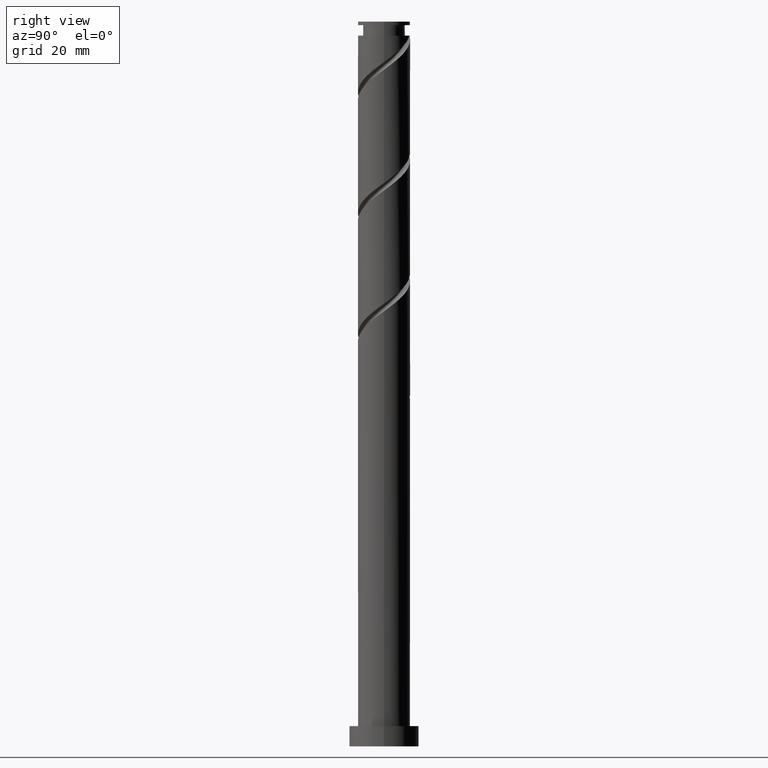
[diagram: clean part render]
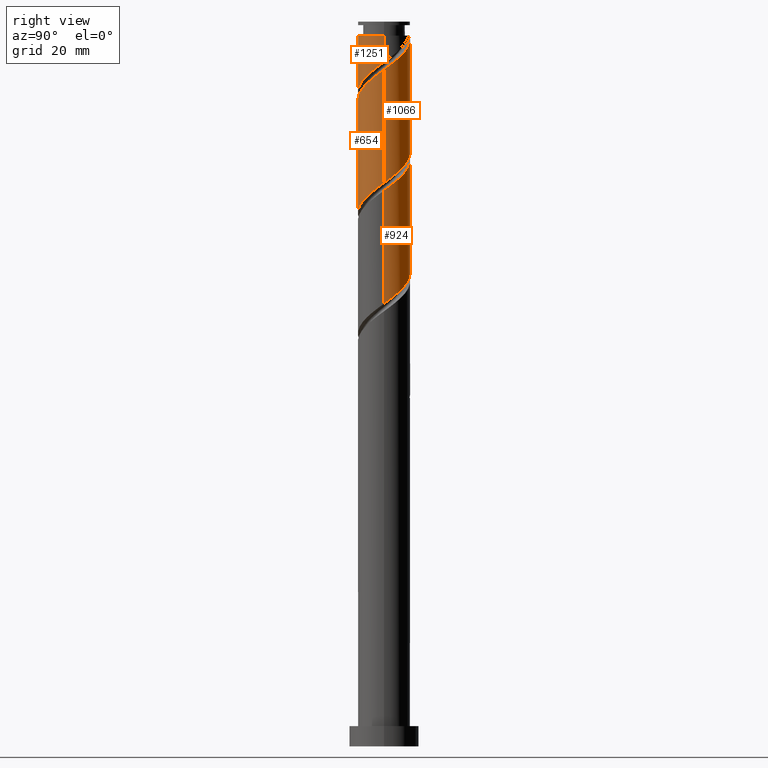
[diagram: same view with one multi-face feature highlighted, each face labeled with its STEP entity id]
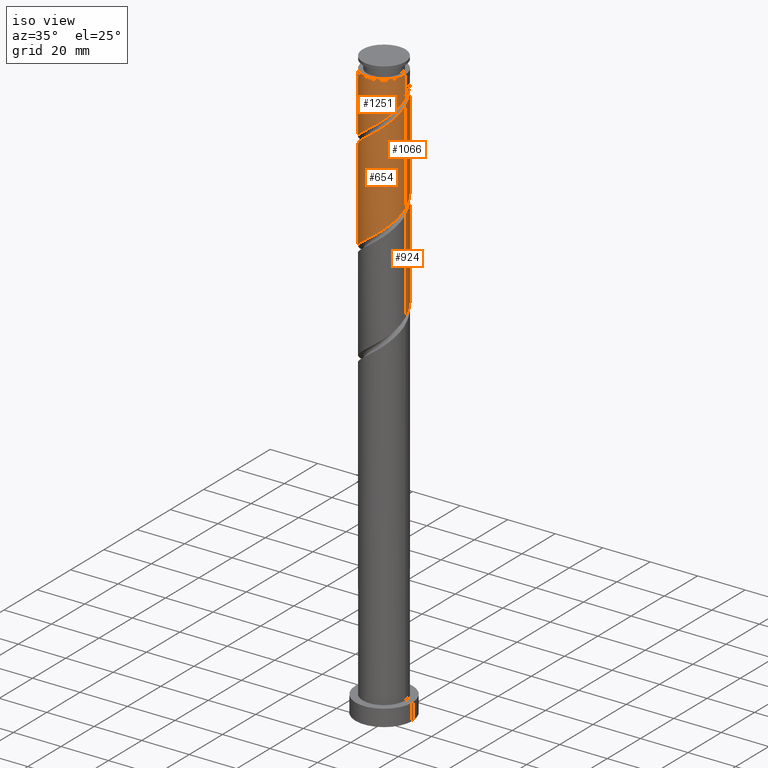
[diagram: same view with one multi-face feature highlighted, each face labeled with its STEP entity id]
A machine part, right view. The highlighted faces form ONE feature: a constant-radius fillet chain: 4 tangent blend faces with common blend radius 9 mm. The faces share edges in the B-rep.
A second angle (iso view) of the same feature is appended — it is thin or edge-on in the first view.
Their STEP definitions:
[1] entity #1251 (Cylinder):
#14 = CARTESIAN_POINT ( 'NONE',  ( -0.7200354947715813525, -9.037464026210493273, 225.1310637522770719 ) ) ;
#65 = DIRECTION ( 'NONE',  ( -1.000000000000000000, 0.000000000000000000, 0.000000000000000000 ) ) ;
#104 = CARTESIAN_POINT ( 'NONE',  ( 2.513026658482494291, -8.642030838509906943, 227.5349099061232323 ) ) ;
#113 = CARTESIAN_POINT ( 'NONE',  ( 5.453992861915035739, -7.242110811148885219, 229.9387560599693359 ) ) ;
#135 = CARTESIAN_POINT ( 'NONE',  ( 9.000000000000000000, -1.226386959729523607E-15, 236.0743702435535738 ) ) ;
#145 = CARTESIAN_POINT ( 'NONE',  ( 7.611753926546273696, -4.802208050647887916, 232.3426022138155531 ) ) ;
#257 = CARTESIAN_POINT ( 'NONE',  ( 9.000000000000000000, -1.226386959729523607E-15, 236.0743702435535738 ) ) ;
#268 = CARTESIAN_POINT ( 'NONE',  ( 4.508176021938667510, -7.789502484447719866, 229.1374740086873487 ) ) ;
#269 = AXIS2_PLACEMENT_3D ( 'NONE', #1211, #1505, #65 ) ;
#274 = VECTOR ( 'NONE', #332, 1000.000000000000000 ) ;
#332 = DIRECTION ( 'NONE',  ( -0.000000000000000000, -0.000000000000000000, -1.000000000000000000 ) ) ;
#333 = ORIENTED_EDGE ( 'NONE', *, *, #511, .T. ) ;
#340 = LINE ( 'NONE', #751, #274 ) ;
#410 = CARTESIAN_POINT ( 'NONE',  ( 7.028660301190697623, -5.726442308208965493, 231.5413201625334523 ) ) ;
#432 = CARTESIAN_POINT ( 'NONE',  ( 8.884780049955319114, -1.804131536971650407, 234.7464483676616567 ) ) ;
#467 = EDGE_CURVE ( 'NONE', #717, #1413, #340, .T. ) ;
#511 = EDGE_CURVE ( 'NONE', #717, #1826, #807, .T. ) ;
#553 = CARTESIAN_POINT ( 'NONE',  ( -6.531901475717486250, -6.287167108507570212, 220.3233714445847511 ) ) ;
#558 = VECTOR ( 'NONE', #819, 1000.000000000000000 ) ;
#582 = CARTESIAN_POINT ( 'NONE',  ( -3.849698997916966903, -8.135097886653673172, 222.7272175984309399 ) ) ;
#665 = ORIENTED_EDGE ( 'NONE', *, *, #1588, .T. ) ;
#673 = EDGE_LOOP ( 'NONE', ( #1771, #333, #665, #675 ) ) ;
#675 = ORIENTED_EDGE ( 'NONE', *, *, #943, .F. ) ;
#679 = CARTESIAN_POINT ( 'NONE',  ( -1.790977386791918313, -8.819999999999998508, 224.3297817009950563 ) ) ;
#695 = CARTESIAN_POINT ( 'NONE',  ( 3.562359181962301058, -8.336894157746554512, 228.3361919574052195 ) ) ;
#704 = CARTESIAN_POINT ( 'NONE',  ( -8.881932594424442939, -1.453022156782441066, 216.3169611881745027 ) ) ;
#715 = CARTESIAN_POINT ( 'NONE',  ( 8.539813800928582666, -2.841052665029232926, 233.9451663163796411 ) ) ;
#717 = VERTEX_POINT ( 'NONE', #1252 ) ;
#751 = CARTESIAN_POINT ( 'NONE',  ( 9.000000000000000000, 1.102182119232617714E-15, 250.0000000000000000 ) ) ;
#807 = CIRCLE ( 'NONE', #269, 8.999999999999982236 ) ;
#819 = DIRECTION ( 'NONE',  ( -0.000000000000000000, -0.000000000000000000, -1.000000000000000000 ) ) ;
#833 = CARTESIAN_POINT ( 'NONE',  ( -4.837478717021675756, -7.667659799517845265, 221.9259355471488675 ) ) ;
#860 = CARTESIAN_POINT ( 'NONE',  ( -7.189307669428957048, -5.414227113290499105, 219.5220893933027639 ) ) ;
#879 = CARTESIAN_POINT ( 'NONE',  ( -9.000000000000000000, -2.452773919459047214E-15, 215.2410369102202310 ) ) ;
#927 = AXIS2_PLACEMENT_3D ( 'NONE', #1371, #1501, #934 ) ;
#928 = FACE_OUTER_BOUND ( 'NONE', #673, .T. ) ;
#934 = DIRECTION ( 'NONE',  ( -1.000000000000000000, 0.000000000000000000, 0.000000000000000000 ) ) ;
#943 = EDGE_CURVE ( 'NONE', #1413, #1138, #1475, .T. ) ;
#1000 = CARTESIAN_POINT ( 'NONE',  ( -2.861919278812258494, -8.602535973789498414, 223.5284996497128986 ) ) ;
#1012 = CARTESIAN_POINT ( 'NONE',  ( -9.000000000000000000, -2.452773919459047214E-15, 215.2410369102202310 ) ) ;
#1138 = VERTEX_POINT ( 'NONE', #879 ) ;
#1158 = CARTESIAN_POINT ( 'NONE',  ( 6.241326581552870678, -6.484276559678924912, 230.7400381112514367 ) ) ;
#1175 = CARTESIAN_POINT ( 'NONE',  ( -8.999999999999982236, 0.000000000000000000, 245.1631150343283707 ) ) ;
#1177 = CARTESIAN_POINT ( 'NONE',  ( -8.276108812811228788, -3.536385572658662380, 217.9195252907386191 ) ) ;
#1211 = CARTESIAN_POINT ( 'NONE',  ( 0.000000000000000000, 0.000000000000000000, 245.1631150343283707 ) ) ;
#1251 = ADVANCED_FACE ( 'NONE', ( #928 ), #1508, .T. ) ;
#1252 = CARTESIAN_POINT ( 'NONE',  ( 8.999999999999982236, 1.102182119232616531E-15, 245.1631150343283707 ) ) ;
#1287 = CARTESIAN_POINT ( 'NONE',  ( -8.705503762482027952, -2.531484027243894985, 217.1182432394565183 ) ) ;
#1294 = CARTESIAN_POINT ( 'NONE',  ( -9.000000000000000000, 0.000000000000000000, 250.0000000000000000 ) ) ;
#1297 = CARTESIAN_POINT ( 'NONE',  ( 0.3718293201155504768, -8.992315772741880764, 225.9323458035592012 ) ) ;
#1307 = CARTESIAN_POINT ( 'NONE',  ( 1.463694135002682639, -8.947167519273266478, 226.7336278548411599 ) ) ;
#1319 = CARTESIAN_POINT ( 'NONE',  ( 9.000000000000000000, -0.3579581730309236987, 235.8101993279205715 ) ) ;
#1371 = CARTESIAN_POINT ( 'NONE',  ( 0.000000000000000000, 0.000000000000000000, 250.0000000000000000 ) ) ;
#1413 = VERTEX_POINT ( 'NONE', #257 ) ;
#1475 =( BOUNDED_CURVE ( )  B_SPLINE_CURVE ( 2, ( #135, #1319, #1717, #432, #715, #1682, #145, #410, #1158, #113, #268, #695, #104, #1307, #1297, #14, #679, #1000, #582, #833, #1550, #553, #860, #1705, #1177, #1287, #704, #1583, #1012 ),
 .UNSPECIFIED., .F., .T. ) 
 B_SPLINE_CURVE_WITH_KNOTS ( ( 3, 2, 2, 2, 2, 2, 2, 2, 2, 2, 2, 2, 2, 2, 3 ),
 ( 0.3045271625973833274, 0.3076923076923077094, 0.3173076923076922906, 0.3269230769230769273, 0.3365384615384615641, 0.3461538461538461453, 0.3557692307692307820, 0.3653846153846153633, 0.3750000000000000000, 0.3846153846153846367, 0.3942307692307692180, 0.4038461538461538547, 0.4134615384615384359, 0.4230769230769230727, 0.4295271625973833274 ),
 .UNSPECIFIED. ) 
 CURVE ( )  GEOMETRIC_REPRESENTATION_ITEM ( )  RATIONAL_B_SPLINE_CURVE ( ( 0.9061636035682715251, 0.9069090390690601744, 0.9090909090909166101, 0.9024626128164202621, 0.9090909090909166101, 0.9024626128164202621, 0.9090909090909166101, 0.9024626128164202621, 0.9090909090909166101, 0.9024626128164202621, 0.9090909090909166101, 0.9024626128164202621, 0.9090909090909166101, 0.9024626128164202621, 0.9090909090909166101, 0.9024626128164202621, 0.9090909090909166101, 0.9024626128164202621, 0.9090909090909166101, 0.9024626128164202621, 0.9090909090909166101, 0.9024626128164202621, 0.9090909090909166101, 0.9024626128164202621, 0.9090909090909166101, 0.9024626128164202621, 0.9090909090909166101, 0.9046444828382766978, 0.9061636035682715251 ) ) 
 REPRESENTATION_ITEM ( '' )  );
#1501 = DIRECTION ( 'NONE',  ( -0.000000000000000000, -0.000000000000000000, -1.000000000000000000 ) ) ;
#1505 = DIRECTION ( 'NONE',  ( -0.000000000000000000, -0.000000000000000000, -1.000000000000000000 ) ) ;
#1508 = CYLINDRICAL_SURFACE ( 'NONE', #927, 9.000000000000000000 ) ;
#1550 = CARTESIAN_POINT ( 'NONE',  ( -5.684690096369581447, -6.977413454012712180, 221.1246534958668235 ) ) ;
#1559 = LINE ( 'NONE', #1294, #558 ) ;
#1583 = CARTESIAN_POINT ( 'NONE',  ( -9.000000000000003553, -0.7313079468334052757, 215.7807376475685430 ) ) ;
#1588 = EDGE_CURVE ( 'NONE', #1826, #1138, #1559, .T. ) ;
#1682 = CARTESIAN_POINT ( 'NONE',  ( 8.194847551901844440, -3.877973793086807230, 233.1438842650975971 ) ) ;
#1705 = CARTESIAN_POINT ( 'NONE',  ( -7.846713863140419853, -4.541287118073426221, 218.7208073420206915 ) ) ;
#1717 = CARTESIAN_POINT ( 'NONE',  ( 8.971570738161089409, -0.7147856253253365155, 235.5477304189437859 ) ) ;
#1771 = ORIENTED_EDGE ( 'NONE', *, *, #467, .F. ) ;
#1826 = VERTEX_POINT ( 'NONE', #1175 ) ;
[2] entity #1066 (Cylinder):
#39 = FACE_OUTER_BOUND ( 'NONE', #1576, .T. ) ;
#49 = ORIENTED_EDGE ( 'NONE', *, *, #1588, .F. ) ;
#50 = AXIS2_PLACEMENT_3D ( 'NONE', #937, #1228, #446 ) ;
#55 = EDGE_CURVE ( 'NONE', #1574, #129, #1791, .T. ) ;
#58 = CARTESIAN_POINT ( 'NONE',  ( 9.000000000000010658, 0.3579581730309246423, 233.6826974074028271 ) ) ;
#114 = CARTESIAN_POINT ( 'NONE',  ( 8.705503762482027952, 2.531484027243889656, 196.2849099061232039 ) ) ;
#129 = VERTEX_POINT ( 'NONE', #1720 ) ;
#193 = CARTESIAN_POINT ( 'NONE',  ( 6.241326581552883113, 6.484276559678931129, 238.7528586240720188 ) ) ;
#236 = CARTESIAN_POINT ( 'NONE',  ( 8.881932594424442939, 1.453022156782441732, 195.4836278548412167 ) ) ;
#260 = CARTESIAN_POINT ( 'NONE',  ( 5.684690096369585888, 6.977413454012709515, 200.2913201625335091 ) ) ;
#288 = CARTESIAN_POINT ( 'NONE',  ( 9.000000000000010658, 5.533697257316111069E-15, 233.4185264917698532 ) ) ;
#309 = DIRECTION ( 'NONE',  ( -0.000000000000000000, -0.000000000000000000, -1.000000000000000000 ) ) ;
#358 = CARTESIAN_POINT ( 'NONE',  ( -8.971570738161085856, 0.7147856253253312975, 214.7143970856105284 ) ) ;
#372 = CIRCLE ( 'NONE', #50, 8.999999999999982236 ) ;
#376 = CARTESIAN_POINT ( 'NONE',  ( -8.884780049955319114, 1.804131536971649297, 213.9131150343283139 ) ) ;
#399 = CARTESIAN_POINT ( 'NONE',  ( -1.463694135002685970, 8.947167519273264702, 205.9002945215078171 ) ) ;
#415 = EDGE_CURVE ( 'NONE', #1574, #426, #505, .T. ) ;
#426 = VERTEX_POINT ( 'NONE', #936 ) ;
#446 = DIRECTION ( 'NONE',  ( -1.000000000000000000, 0.000000000000000000, 0.000000000000000000 ) ) ;
#469 = CARTESIAN_POINT ( 'NONE',  ( 3.562359181962309940, 8.336894157746561618, 241.1567047779181223 ) ) ;
#505 =( BOUNDED_CURVE ( )  B_SPLINE_CURVE ( 2, ( #609, #58, #1090, #1782, #910, #902, #1487, #1058, #193, #1645, #628, #469, #767, #1651, #1759, #1472, #930 ),
 .UNSPECIFIED., .F., .T. ) 
 B_SPLINE_CURVE_WITH_KNOTS ( ( 3, 2, 2, 2, 2, 2, 2, 2, 3 ),
 ( 0.6795271625973834384, 0.6826923076923077094, 0.6923076923076922906, 0.7019230769230768718, 0.7115384615384615641, 0.7211538461538461453, 0.7307692307692308376, 0.7403846153846154188, 0.7500000000000000000 ),
 .UNSPECIFIED. ) 
 CURVE ( )  GEOMETRIC_REPRESENTATION_ITEM ( )  RATIONAL_B_SPLINE_CURVE ( ( 0.9061636035682768542, 0.9069090390690655035, 0.9090909090909219392, 0.9024626128164257022, 0.9090909090909219392, 0.9024626128164257022, 0.9090909090909219392, 0.9024626128164257022, 0.9090909090909219392, 0.9024626128164257022, 0.9090909090909219392, 0.9024626128164257022, 0.9090909090909219392, 0.9024626128164257022, 0.9090909090909219392, 0.9024626128164257022, 0.9090909090909219392 ) ) 
 REPRESENTATION_ITEM ( '' )  );
#512 = CARTESIAN_POINT ( 'NONE',  ( -8.539813800928584442, 2.841052665029229818, 213.1118329830463551 ) ) ;
#514 = CARTESIAN_POINT ( 'NONE',  ( 9.000000000000000000, 1.102182119232617714E-15, 250.0000000000000000 ) ) ;
#543 = CARTESIAN_POINT ( 'NONE',  ( -2.513026658482495179, 8.642030838509906943, 206.7015765727899179 ) ) ;
#558 = VECTOR ( 'NONE', #819, 1000.000000000000000 ) ;
#584 = EDGE_CURVE ( 'NONE', #1138, #129, #901, .T. ) ;
#609 = CARTESIAN_POINT ( 'NONE',  ( 9.000000000000010658, 5.533697257316111069E-15, 233.4185264917698532 ) ) ;
#628 = CARTESIAN_POINT ( 'NONE',  ( 4.508176021938681721, 7.789502484447728747, 240.3554227266360783 ) ) ;
#680 = CARTESIAN_POINT ( 'NONE',  ( 7.846713863140425183, 4.541287118073422668, 197.8874740086872919 ) ) ;
#767 = CARTESIAN_POINT ( 'NONE',  ( 2.513026658482507170, 8.642030838509922930, 241.9579868292002232 ) ) ;
#819 = DIRECTION ( 'NONE',  ( -0.000000000000000000, -0.000000000000000000, -1.000000000000000000 ) ) ;
#834 = CARTESIAN_POINT ( 'NONE',  ( 7.189307669428957048, 5.414227113290497329, 198.6887560599693927 ) ) ;
#879 = CARTESIAN_POINT ( 'NONE',  ( -9.000000000000000000, -2.452773919459047214E-15, 215.2410369102202310 ) ) ;
#880 = VECTOR ( 'NONE', #1104, 1000.000000000000000 ) ;
#889 = CARTESIAN_POINT ( 'NONE',  ( 0.000000000000000000, 0.000000000000000000, 250.0000000000000000 ) ) ;
#901 =( BOUNDED_CURVE ( )  B_SPLINE_CURVE ( 2, ( #1064, #1631, #358, #376, #512, #959, #1135, #1804, #1683, #1409, #1528, #1540, #543, #399, #944, #1124, #989, #1112, #1790, #1551, #260, #1813, #834, #680, #1661, #114, #236, #1673, #1387 ),
 .UNSPECIFIED., .F., .T. ) 
 B_SPLINE_CURVE_WITH_KNOTS ( ( 3, 2, 2, 2, 2, 2, 2, 2, 2, 2, 2, 2, 2, 2, 3 ),
 ( 0.4295271625973833274, 0.4326923076923077094, 0.4423076923076922906, 0.4519230769230769273, 0.4615384615384615641, 0.4711538461538461453, 0.4807692307692307820, 0.4903846153846153633, 0.5000000000000000000, 0.5096153846153845812, 0.5192307692307692735, 0.5288461538461538547, 0.5384615384615384359, 0.5480769230769231282, 0.5545271625973833274 ),
 .UNSPECIFIED. ) 
 CURVE ( )  GEOMETRIC_REPRESENTATION_ITEM ( )  RATIONAL_B_SPLINE_CURVE ( ( 0.9061636035682715251, 0.9069090390690601744, 0.9090909090909166101, 0.9024626128164202621, 0.9090909090909166101, 0.9024626128164202621, 0.9090909090909166101, 0.9024626128164202621, 0.9090909090909166101, 0.9024626128164202621, 0.9090909090909166101, 0.9024626128164202621, 0.9090909090909166101, 0.9024626128164202621, 0.9090909090909166101, 0.9024626128164202621, 0.9090909090909166101, 0.9024626128164202621, 0.9090909090909166101, 0.9024626128164202621, 0.9090909090909166101, 0.9024626128164202621, 0.9090909090909166101, 0.9024626128164202621, 0.9090909090909166101, 0.9024626128164202621, 0.9090909090909166101, 0.9046444828382766978, 0.9061636035682715251 ) ) 
 REPRESENTATION_ITEM ( '' )  );
#902 = CARTESIAN_POINT ( 'NONE',  ( 8.194847551901856875, 3.877973793086807230, 236.3490124702257447 ) ) ;
#910 = CARTESIAN_POINT ( 'NONE',  ( 8.539813800928598653, 2.841052665029224489, 235.5477304189438144 ) ) ;
#917 = CYLINDRICAL_SURFACE ( 'NONE', #1010, 9.000000000000000000 ) ;
#930 = CARTESIAN_POINT ( 'NONE',  ( -1.790977386791841930, 8.820000000000016271, 245.1631150343282854 ) ) ;
#936 = CARTESIAN_POINT ( 'NONE',  ( -1.790977386791841708, 8.820000000000016271, 245.1631150343282854 ) ) ;
#937 = CARTESIAN_POINT ( 'NONE',  ( 0.000000000000000000, 0.000000000000000000, 245.1631150343283707 ) ) ;
#944 = CARTESIAN_POINT ( 'NONE',  ( -0.3718293201155536409, 8.992315772741880764, 205.0990124702257731 ) ) ;
#959 = CARTESIAN_POINT ( 'NONE',  ( -8.194847551901844440, 3.877973793086807675, 212.3105509317642259 ) ) ;
#989 = CARTESIAN_POINT ( 'NONE',  ( 1.790977386791919201, 8.819999999999998508, 203.4964483676617419 ) ) ;
#1010 = AXIS2_PLACEMENT_3D ( 'NONE', #889, #309, #1040 ) ;
#1040 = DIRECTION ( 'NONE',  ( -1.000000000000000000, 0.000000000000000000, 0.000000000000000000 ) ) ;
#1058 = CARTESIAN_POINT ( 'NONE',  ( 7.028660301190711834, 5.726442308208963716, 237.9515765727898327 ) ) ;
#1064 = CARTESIAN_POINT ( 'NONE',  ( -9.000000000000000000, -2.452773919459047214E-15, 215.2410369102202310 ) ) ;
#1066 = ADVANCED_FACE ( 'NONE', ( #39 ), #917, .T. ) ;
#1090 = CARTESIAN_POINT ( 'NONE',  ( 8.971570738161098291, 0.7147856253253250802, 233.9451663163797264 ) ) ;
#1104 = DIRECTION ( 'NONE',  ( -0.000000000000000000, -0.000000000000000000, -1.000000000000000000 ) ) ;
#1112 = CARTESIAN_POINT ( 'NONE',  ( 2.861919278812259382, 8.602535973789498414, 202.6951663163796127 ) ) ;
#1124 = CARTESIAN_POINT ( 'NONE',  ( 0.7200354947715793541, 9.037464026210493273, 204.2977304189437575 ) ) ;
#1135 = CARTESIAN_POINT ( 'NONE',  ( -7.611753926546273696, 4.802208050647885251, 211.5092688804822103 ) ) ;
#1138 = VERTEX_POINT ( 'NONE', #879 ) ;
#1151 = ORIENTED_EDGE ( 'NONE', *, *, #415, .F. ) ;
#1160 = ORIENTED_EDGE ( 'NONE', *, *, #55, .T. ) ;
#1175 = CARTESIAN_POINT ( 'NONE',  ( -8.999999999999982236, 0.000000000000000000, 245.1631150343283707 ) ) ;
#1228 = DIRECTION ( 'NONE',  ( -0.000000000000000000, -0.000000000000000000, -1.000000000000000000 ) ) ;
#1294 = CARTESIAN_POINT ( 'NONE',  ( -9.000000000000000000, 0.000000000000000000, 250.0000000000000000 ) ) ;
#1387 = CARTESIAN_POINT ( 'NONE',  ( 9.000000000000000000, -9.601712538370174632E-15, 194.4077035768869166 ) ) ;
#1409 = CARTESIAN_POINT ( 'NONE',  ( -5.453992861915037516, 7.242110811148884331, 209.1054227266360499 ) ) ;
#1410 = ORIENTED_EDGE ( 'NONE', *, *, #584, .F. ) ;
#1472 = CARTESIAN_POINT ( 'NONE',  ( -0.7200354947715738030, 9.037464026210505708, 244.3618329830462983 ) ) ;
#1487 = CARTESIAN_POINT ( 'NONE',  ( 7.611753926546286131, 4.802208050647890580, 237.1502945215079023 ) ) ;
#1515 = ORIENTED_EDGE ( 'NONE', *, *, #1767, .T. ) ;
#1528 = CARTESIAN_POINT ( 'NONE',  ( -4.508176021938668399, 7.789502484447719866, 208.3041406753540628 ) ) ;
#1540 = CARTESIAN_POINT ( 'NONE',  ( -3.562359181962302390, 8.336894157746552736, 207.5028586240719335 ) ) ;
#1551 = CARTESIAN_POINT ( 'NONE',  ( 4.837478717021676644, 7.667659799517845265, 201.0926022138154394 ) ) ;
#1559 = LINE ( 'NONE', #1294, #558 ) ;
#1574 = VERTEX_POINT ( 'NONE', #288 ) ;
#1576 = EDGE_LOOP ( 'NONE', ( #1151, #1160, #1410, #49, #1515 ) ) ;
#1588 = EDGE_CURVE ( 'NONE', #1826, #1138, #1559, .T. ) ;
#1631 = CARTESIAN_POINT ( 'NONE',  ( -9.000000000000000000, 0.3579581730309192023, 214.9768659945872287 ) ) ;
#1645 = CARTESIAN_POINT ( 'NONE',  ( 5.453992861915053503, 7.242110811148886995, 239.5541406753540343 ) ) ;
#1651 = CARTESIAN_POINT ( 'NONE',  ( 1.463694135002693297, 8.947167519273275360, 242.7592688804821535 ) ) ;
#1661 = CARTESIAN_POINT ( 'NONE',  ( 8.276108812811228788, 3.536385572658660603, 197.0861919574053047 ) ) ;
#1673 = CARTESIAN_POINT ( 'NONE',  ( 9.000000000000000000, 0.7313079468334056088, 194.9474043142352571 ) ) ;
#1683 = CARTESIAN_POINT ( 'NONE',  ( -6.241326581552870678, 6.484276559678924912, 209.9067047779181223 ) ) ;
#1720 = CARTESIAN_POINT ( 'NONE',  ( 9.000000000000000000, -9.601712538370176209E-15, 194.4077035768869166 ) ) ;
#1759 = CARTESIAN_POINT ( 'NONE',  ( 0.3718293201155639105, 8.992315772741891422, 243.5605509317643396 ) ) ;
#1767 = EDGE_CURVE ( 'NONE', #1826, #426, #372, .T. ) ;
#1782 = CARTESIAN_POINT ( 'NONE',  ( 8.884780049955333325, 1.804131536971647742, 234.7464483676616567 ) ) ;
#1790 = CARTESIAN_POINT ( 'NONE',  ( 3.849698997916973564, 8.135097886653673172, 201.8938842650976255 ) ) ;
#1791 = LINE ( 'NONE', #514, #880 ) ;
#1804 = CARTESIAN_POINT ( 'NONE',  ( -7.028660301190702953, 5.726442308208962828, 210.7079868292001663 ) ) ;
#1813 = CARTESIAN_POINT ( 'NONE',  ( 6.531901475717487138, 6.287167108507570212, 199.4900381112514651 ) ) ;
#1826 = VERTEX_POINT ( 'NONE', #1175 ) ;
[3] entity #654 (Cylinder):
#8 =( BOUNDED_CURVE ( )  B_SPLINE_CURVE ( 2, ( #1148, #977, #401, #107, #262, #1420, #61, #684, #698, #814, #1523, #1290, #836, #1817, #849, #1699, #1115, #1256, #413, #1003, #630, #1806, #1668, #1662, #994, #1543, #1244, #369, #671 ),
 .UNSPECIFIED., .F., .T. ) 
 B_SPLINE_CURVE_WITH_KNOTS ( ( 3, 2, 2, 2, 2, 2, 2, 2, 2, 2, 2, 2, 2, 2, 3 ),
 ( 0.5545271625973832164, 0.5576923076923077094, 0.5673076923076922906, 0.5769230769230768718, 0.5865384615384615641, 0.5961538461538461453, 0.6057692307692308376, 0.6153846153846154188, 0.6250000000000000000, 0.6346153846153845812, 0.6442307692307691624, 0.6538461538461538547, 0.6634615384615384359, 0.6730769230769231282, 0.6795271625973834384 ),
 .UNSPECIFIED. ) 
 CURVE ( )  GEOMETRIC_REPRESENTATION_ITEM ( )  RATIONAL_B_SPLINE_CURVE ( ( 0.9061636035682767432, 0.9069090390690653924, 0.9090909090909219392, 0.9024626128164257022, 0.9090909090909219392, 0.9024626128164257022, 0.9090909090909219392, 0.9024626128164257022, 0.9090909090909219392, 0.9024626128164257022, 0.9090909090909219392, 0.9024626128164257022, 0.9090909090909219392, 0.9024626128164257022, 0.9090909090909219392, 0.9024626128164257022, 0.9090909090909219392, 0.9024626128164257022, 0.9090909090909219392, 0.9024626128164257022, 0.9090909090909219392, 0.9024626128164257022, 0.9090909090909219392, 0.9024626128164257022, 0.9090909090909219392, 0.9024626128164257022, 0.9090909090909219392, 0.9046444828382820269, 0.9061636035682768542 ) ) 
 REPRESENTATION_ITEM ( '' )  );
#46 = EDGE_CURVE ( 'NONE', #1419, #1574, #8, .T. ) ;
#47 = CARTESIAN_POINT ( 'NONE',  ( 1.463694135002682639, -8.947167519273266478, 185.0669611881745027 ) ) ;
#55 = EDGE_CURVE ( 'NONE', #1574, #129, #1791, .T. ) ;
#61 = CARTESIAN_POINT ( 'NONE',  ( -7.611753926546286131, -4.802208050647889692, 216.3169611881745311 ) ) ;
#107 = CARTESIAN_POINT ( 'NONE',  ( -8.884780049955333325, -1.804131536971649075, 213.9131150343283707 ) ) ;
#119 = ORIENTED_EDGE ( 'NONE', *, *, #1396, .T. ) ;
#129 = VERTEX_POINT ( 'NONE', #1720 ) ;
#183 = CARTESIAN_POINT ( 'NONE',  ( 9.000000000000000000, -0.3579581730309215892, 194.1435326612539427 ) ) ;
#191 = CARTESIAN_POINT ( 'NONE',  ( -6.531901475717486250, -6.287167108507570212, 178.6567047779180939 ) ) ;
#262 = CARTESIAN_POINT ( 'NONE',  ( -8.539813800928596876, -2.841052665029230262, 214.7143970856104715 ) ) ;
#288 = CARTESIAN_POINT ( 'NONE',  ( 9.000000000000010658, 5.533697257316111069E-15, 233.4185264917698532 ) ) ;
#369 = CARTESIAN_POINT ( 'NONE',  ( 9.000000000000012434, -0.7313079468333985034, 232.8788257544215128 ) ) ;
#401 = CARTESIAN_POINT ( 'NONE',  ( -8.971570738161096514, -0.7147856253253280778, 213.1118329830463267 ) ) ;
#413 = CARTESIAN_POINT ( 'NONE',  ( 3.849698997916966903, -8.135097886653689159, 225.9323458035591727 ) ) ;
#439 = CARTESIAN_POINT ( 'NONE',  ( -0.7200354947715813525, -9.037464026210493273, 183.4643970856104431 ) ) ;
#460 = CARTESIAN_POINT ( 'NONE',  ( 7.611753926546273696, -4.802208050647887916, 190.6759355471488959 ) ) ;
#476 = CARTESIAN_POINT ( 'NONE',  ( -2.861919278812258494, -8.602535973789498414, 181.8618329830462699 ) ) ;
#514 = CARTESIAN_POINT ( 'NONE',  ( 9.000000000000000000, 1.102182119232617714E-15, 250.0000000000000000 ) ) ;
#531 = CARTESIAN_POINT ( 'NONE',  ( -9.000000000000000000, 0.000000000000000000, 250.0000000000000000 ) ) ;
#554 = CARTESIAN_POINT ( 'NONE',  ( 0.000000000000000000, 0.000000000000000000, 250.0000000000000000 ) ) ;
#565 = ORIENTED_EDGE ( 'NONE', *, *, #55, .F. ) ;
#590 = CARTESIAN_POINT ( 'NONE',  ( 8.194847551901844440, -3.877973793086807230, 191.4772175984308831 ) ) ;
#599 = CARTESIAN_POINT ( 'NONE',  ( -3.849698997916966903, -8.135097886653673172, 181.0605509317643111 ) ) ;
#608 = CARTESIAN_POINT ( 'NONE',  ( 9.000000000000000000, -9.601712538370174632E-15, 194.4077035768869166 ) ) ;
#616 = CARTESIAN_POINT ( 'NONE',  ( 7.028660301190697623, -5.726442308208965493, 189.8746534958668235 ) ) ;
#630 = CARTESIAN_POINT ( 'NONE',  ( 5.684690096369586776, -6.977413454012721949, 227.5349099061232607 ) ) ;
#654 = ADVANCED_FACE ( 'NONE', ( #1288 ), #669, .T. ) ;
#669 = CYLINDRICAL_SURFACE ( 'NONE', #693, 9.000000000000000000 ) ;
#671 = CARTESIAN_POINT ( 'NONE',  ( 9.000000000000010658, 5.533697257316111069E-15, 233.4185264917698532 ) ) ;
#684 = CARTESIAN_POINT ( 'NONE',  ( -7.028660301190710058, -5.726442308208969045, 217.1182432394564898 ) ) ;
#693 = AXIS2_PLACEMENT_3D ( 'NONE', #554, #972, #1380 ) ;
#698 = CARTESIAN_POINT ( 'NONE',  ( -6.241326581552882224, -6.484276559678933793, 217.9195252907386759 ) ) ;
#757 = CARTESIAN_POINT ( 'NONE',  ( -8.276108812811228788, -3.536385572658662380, 176.2528586240719619 ) ) ;
#814 = CARTESIAN_POINT ( 'NONE',  ( -5.453992861915049062, -7.242110811148890548, 218.7208073420206347 ) ) ;
#836 = CARTESIAN_POINT ( 'NONE',  ( -2.513026658482501396, -8.642030838509922930, 221.1246534958669372 ) ) ;
#849 = CARTESIAN_POINT ( 'NONE',  ( -0.3718293201155585259, -8.992315772741891422, 222.7272175984309683 ) ) ;
#880 = VECTOR ( 'NONE', #1104, 1000.000000000000000 ) ;
#905 = VERTEX_POINT ( 'NONE', #1196 ) ;
#908 = CARTESIAN_POINT ( 'NONE',  ( 4.508176021938667510, -7.789502484447719866, 187.4708073420207484 ) ) ;
#954 = VECTOR ( 'NONE', #1703, 1000.000000000000000 ) ;
#962 = EDGE_LOOP ( 'NONE', ( #565, #1590, #119, #1390 ) ) ;
#972 = DIRECTION ( 'NONE',  ( -0.000000000000000000, -0.000000000000000000, -1.000000000000000000 ) ) ;
#977 = CARTESIAN_POINT ( 'NONE',  ( -9.000000000000008882, -0.3579581730309013832, 212.8493640740694559 ) ) ;
#994 = CARTESIAN_POINT ( 'NONE',  ( 8.276108812811237669, -3.536385572658670817, 230.7400381112514935 ) ) ;
#1003 = CARTESIAN_POINT ( 'NONE',  ( 4.837478717021675756, -7.667659799517861252, 226.7336278548411883 ) ) ;
#1022 = EDGE_CURVE ( 'NONE', #129, #905, #1658, .T. ) ;
#1049 = CARTESIAN_POINT ( 'NONE',  ( 3.562359181962301058, -8.336894157746554512, 186.6695252907385623 ) ) ;
#1056 = CARTESIAN_POINT ( 'NONE',  ( 8.971570738161089409, -0.7147856253253365155, 193.8810637522771572 ) ) ;
#1063 = CARTESIAN_POINT ( 'NONE',  ( -5.684690096369581447, -6.977413454012712180, 179.4579868292002232 ) ) ;
#1104 = DIRECTION ( 'NONE',  ( -0.000000000000000000, -0.000000000000000000, -1.000000000000000000 ) ) ;
#1115 = CARTESIAN_POINT ( 'NONE',  ( 1.790977386791917647, -8.820000000000012719, 224.3297817009950563 ) ) ;
#1148 = CARTESIAN_POINT ( 'NONE',  ( -9.000000000000008882, 5.832816027981846803E-15, 212.5851931584364536 ) ) ;
#1185 = CARTESIAN_POINT ( 'NONE',  ( -8.705503762482027952, -2.531484027243894985, 175.4515765727898611 ) ) ;
#1196 = CARTESIAN_POINT ( 'NONE',  ( -9.000000000000000000, 5.922551659181603811E-15, 173.5743702435535738 ) ) ;
#1203 = CARTESIAN_POINT ( 'NONE',  ( -1.790977386791918313, -8.819999999999998508, 182.6631150343283707 ) ) ;
#1210 = CARTESIAN_POINT ( 'NONE',  ( 5.453992861915035739, -7.242110811148885219, 188.2720893933027639 ) ) ;
#1244 = CARTESIAN_POINT ( 'NONE',  ( 8.881932594424453598, -1.453022156782448393, 232.3426022138155247 ) ) ;
#1256 = CARTESIAN_POINT ( 'NONE',  ( 2.861919278812254497, -8.602535973789512624, 225.1310637522770435 ) ) ;
#1288 = FACE_OUTER_BOUND ( 'NONE', #962, .T. ) ;
#1290 = CARTESIAN_POINT ( 'NONE',  ( -3.562359181962309940, -8.336894157746561618, 220.3233714445848079 ) ) ;
#1305 = LINE ( 'NONE', #531, #954 ) ;
#1326 = CARTESIAN_POINT ( 'NONE',  ( -4.837478717021675756, -7.667659799517845265, 180.2592688804822103 ) ) ;
#1343 = CARTESIAN_POINT ( 'NONE',  ( 6.241326581552870678, -6.484276559678924912, 189.0733714445847795 ) ) ;
#1350 = CARTESIAN_POINT ( 'NONE',  ( -7.189307669428957048, -5.414227113290499105, 177.8554227266360783 ) ) ;
#1380 = DIRECTION ( 'NONE',  ( -1.000000000000000000, 0.000000000000000000, 0.000000000000000000 ) ) ;
#1390 = ORIENTED_EDGE ( 'NONE', *, *, #1022, .F. ) ;
#1396 = EDGE_CURVE ( 'NONE', #1419, #905, #1305, .T. ) ;
#1419 = VERTEX_POINT ( 'NONE', #1570 ) ;
#1420 = CARTESIAN_POINT ( 'NONE',  ( -8.194847551901853322, -3.877973793086810783, 215.5156791368924303 ) ) ;
#1486 = CARTESIAN_POINT ( 'NONE',  ( -8.881932594424442939, -1.453022156782441066, 174.6502945215078455 ) ) ;
#1523 = CARTESIAN_POINT ( 'NONE',  ( -4.508176021938681721, -7.789502484447728747, 219.5220893933028208 ) ) ;
#1543 = CARTESIAN_POINT ( 'NONE',  ( 8.705503762482038610, -2.531484027243905643, 231.5413201625333954 ) ) ;
#1570 = CARTESIAN_POINT ( 'NONE',  ( -9.000000000000008882, 5.832816027981846803E-15, 212.5851931584364820 ) ) ;
#1574 = VERTEX_POINT ( 'NONE', #288 ) ;
#1590 = ORIENTED_EDGE ( 'NONE', *, *, #46, .F. ) ;
#1613 = CARTESIAN_POINT ( 'NONE',  ( -9.000000000000003553, -0.7313079468334074962, 174.1140709809019427 ) ) ;
#1623 = CARTESIAN_POINT ( 'NONE',  ( 2.513026658482494291, -8.642030838509906943, 185.8682432394565751 ) ) ;
#1630 = CARTESIAN_POINT ( 'NONE',  ( -7.846713863140419853, -4.541287118073426221, 177.0541406753540059 ) ) ;
#1658 =( BOUNDED_CURVE ( )  B_SPLINE_CURVE ( 2, ( #608, #183, #1056, #1727, #1743, #590, #460, #616, #1343, #1210, #908, #1049, #1623, #47, #1758, #439, #1203, #476, #599, #1326, #1063, #191, #1350, #1630, #757, #1185, #1486, #1613, #1752 ),
 .UNSPECIFIED., .F., .T. ) 
 B_SPLINE_CURVE_WITH_KNOTS ( ( 3, 2, 2, 2, 2, 2, 2, 2, 2, 2, 2, 2, 2, 2, 3 ),
 ( 0.5545271625973833274, 0.5576923076923077094, 0.5673076923076922906, 0.5769230769230768718, 0.5865384615384615641, 0.5961538461538461453, 0.6057692307692307265, 0.6153846153846154188, 0.6250000000000000000, 0.6346153846153845812, 0.6442307692307692735, 0.6538461538461538547, 0.6634615384615384359, 0.6730769230769231282, 0.6795271625973833274 ),
 .UNSPECIFIED. ) 
 CURVE ( )  GEOMETRIC_REPRESENTATION_ITEM ( )  RATIONAL_B_SPLINE_CURVE ( ( 0.9061636035682715251, 0.9069090390690601744, 0.9090909090909166101, 0.9024626128164202621, 0.9090909090909166101, 0.9024626128164202621, 0.9090909090909166101, 0.9024626128164202621, 0.9090909090909166101, 0.9024626128164202621, 0.9090909090909166101, 0.9024626128164202621, 0.9090909090909166101, 0.9024626128164202621, 0.9090909090909166101, 0.9024626128164202621, 0.9090909090909166101, 0.9024626128164202621, 0.9090909090909166101, 0.9024626128164202621, 0.9090909090909166101, 0.9024626128164202621, 0.9090909090909166101, 0.9024626128164202621, 0.9090909090909166101, 0.9024626128164202621, 0.9090909090909166101, 0.9046444828382766978, 0.9061636035682715251 ) ) 
 REPRESENTATION_ITEM ( '' )  );
#1662 = CARTESIAN_POINT ( 'NONE',  ( 7.846713863140428735, -4.541287118073438656, 229.9387560599693927 ) ) ;
#1668 = CARTESIAN_POINT ( 'NONE',  ( 7.189307669428961489, -5.414227113290514204, 229.1374740086874056 ) ) ;
#1699 = CARTESIAN_POINT ( 'NONE',  ( 0.7200354947715749132, -9.037464026210505708, 223.5284996497129271 ) ) ;
#1703 = DIRECTION ( 'NONE',  ( -0.000000000000000000, -0.000000000000000000, -1.000000000000000000 ) ) ;
#1720 = CARTESIAN_POINT ( 'NONE',  ( 9.000000000000000000, -9.601712538370176209E-15, 194.4077035768869166 ) ) ;
#1727 = CARTESIAN_POINT ( 'NONE',  ( 8.884780049955319114, -1.804131536971650407, 193.0797817009949711 ) ) ;
#1743 = CARTESIAN_POINT ( 'NONE',  ( 8.539813800928582666, -2.841052665029232926, 192.2784996497130408 ) ) ;
#1752 = CARTESIAN_POINT ( 'NONE',  ( -9.000000000000000000, 5.922551659181603811E-15, 173.5743702435535738 ) ) ;
#1758 = CARTESIAN_POINT ( 'NONE',  ( 0.3718293201155504768, -8.992315772741880764, 184.2656791368924587 ) ) ;
#1791 = LINE ( 'NONE', #514, #880 ) ;
#1806 = CARTESIAN_POINT ( 'NONE',  ( 6.531901475717493355, -6.287167108507582647, 228.3361919574052479 ) ) ;
#1817 = CARTESIAN_POINT ( 'NONE',  ( -1.463694135002692187, -8.947167519273275360, 221.9259355471488391 ) ) ;
[4] entity #924 (Cylinder):
#2 = CARTESIAN_POINT ( 'NONE',  ( -8.276108812811237669, 3.536385572658670817, 209.9067047779182076 ) ) ;
#7 = CARTESIAN_POINT ( 'NONE',  ( 9.000000000000000000, 0.7313079468333929523, 153.2807376475685430 ) ) ;
#16 = CARTESIAN_POINT ( 'NONE',  ( 2.861919278812259382, 8.602535973789498414, 161.0284996497129555 ) ) ;
#63 = CARTESIAN_POINT ( 'NONE',  ( 8.971570738161098291, 0.7147856253253250802, 192.2784996497129839 ) ) ;
#89 = CARTESIAN_POINT ( 'NONE',  ( -8.194847551901844440, 3.877973793086807675, 170.6438842650975403 ) ) ;
#96 = ORIENTED_EDGE ( 'NONE', *, *, #1396, .F. ) ;
#127 = EDGE_CURVE ( 'NONE', #905, #245, #1541, .T. ) ;
#212 = LINE ( 'NONE', #1233, #1095 ) ;
#240 = CARTESIAN_POINT ( 'NONE',  ( -1.463694135002685970, 8.947167519273264702, 164.2336278548411883 ) ) ;
#245 = VERTEX_POINT ( 'NONE', #863 ) ;
#251 = VERTEX_POINT ( 'NONE', #728 ) ;
#252 = CARTESIAN_POINT ( 'NONE',  ( -7.611753926546273696, 4.802208050647885251, 169.8426022138155531 ) ) ;
#266 = CARTESIAN_POINT ( 'NONE',  ( -2.861919278812257161, 8.602535973789512624, 204.2977304189437859 ) ) ;
#290 = FACE_OUTER_BOUND ( 'NONE', #850, .T. ) ;
#338 = CARTESIAN_POINT ( 'NONE',  ( 9.000000000000010658, 1.346034467995811195E-15, 191.7518598251031392 ) ) ;
#380 = CARTESIAN_POINT ( 'NONE',  ( -4.508176021938668399, 7.789502484447719866, 166.6374740086873487 ) ) ;
#382 = EDGE_CURVE ( 'NONE', #251, #245, #212, .T. ) ;
#484 = CARTESIAN_POINT ( 'NONE',  ( 4.508176021938681721, 7.789502484447728747, 198.6887560599693927 ) ) ;
#492 = CARTESIAN_POINT ( 'NONE',  ( 0.3718293201155639105, 8.992315772741891422, 201.8938842650976540 ) ) ;
#501 = CARTESIAN_POINT ( 'NONE',  ( 2.513026658482507170, 8.642030838509922930, 200.2913201625335375 ) ) ;
#509 = CARTESIAN_POINT ( 'NONE',  ( 8.884780049955333325, 1.804131536971647742, 193.0797817009949995 ) ) ;
#527 = CARTESIAN_POINT ( 'NONE',  ( -6.241326581552870678, 6.484276559678924912, 168.2400381112514935 ) ) ;
#531 = CARTESIAN_POINT ( 'NONE',  ( -9.000000000000000000, 0.000000000000000000, 250.0000000000000000 ) ) ;
#546 = CARTESIAN_POINT ( 'NONE',  ( -9.000000000000000000, 5.922551659181603811E-15, 173.5743702435535738 ) ) ;
#566 = CARTESIAN_POINT ( 'NONE',  ( 7.846713863140425183, 4.541287118073422668, 156.2208073420206631 ) ) ;
#570 = CARTESIAN_POINT ( 'NONE',  ( -9.000000000000008882, 5.832816027981846803E-15, 212.5851931584364536 ) ) ;
#572 = DIRECTION ( 'NONE',  ( -0.000000000000000000, -0.000000000000000000, -1.000000000000000000 ) ) ;
#574 = CARTESIAN_POINT ( 'NONE',  ( 8.881932594424442939, 1.453022156782441732, 153.8169611881745311 ) ) ;
#585 = CARTESIAN_POINT ( 'NONE',  ( 8.276108812811228788, 3.536385572658660603, 155.4195252907385907 ) ) ;
#662 = CARTESIAN_POINT ( 'NONE',  ( -7.028660301190702953, 5.726442308208962828, 169.0413201625334523 ) ) ;
#677 = CARTESIAN_POINT ( 'NONE',  ( -7.189307669428963266, 5.414227113290511539, 208.3041406753540343 ) ) ;
#691 = CARTESIAN_POINT ( 'NONE',  ( -5.684690096369586776, 6.977413454012721949, 206.7015765727899179 ) ) ;
#713 = CARTESIAN_POINT ( 'NONE',  ( -3.849698997916970455, 8.135097886653689159, 205.0990124702258868 ) ) ;
#718 = CARTESIAN_POINT ( 'NONE',  ( 9.000000000000000000, -9.601712538370174632E-15, 152.7410369102202026 ) ) ;
#725 = CARTESIAN_POINT ( 'NONE',  ( 0.000000000000000000, 0.000000000000000000, 250.0000000000000000 ) ) ;
#728 = CARTESIAN_POINT ( 'NONE',  ( 9.000000000000010658, 1.346034467995811195E-15, 191.7518598251031392 ) ) ;
#736 = CARTESIAN_POINT ( 'NONE',  ( 7.189307669428957048, 5.414227113290497329, 157.0220893933027924 ) ) ;
#743 = CARTESIAN_POINT ( 'NONE',  ( 6.531901475717487138, 6.287167108507570212, 157.8233714445848079 ) ) ;
#773 = CARTESIAN_POINT ( 'NONE',  ( 6.241326581552883113, 6.484276559678931129, 197.0861919574053047 ) ) ;
#788 = ORIENTED_EDGE ( 'NONE', *, *, #1383, .F. ) ;
#799 = CARTESIAN_POINT ( 'NONE',  ( 5.453992861915053503, 7.242110811148886995, 197.8874740086872634 ) ) ;
#842 = CARTESIAN_POINT ( 'NONE',  ( -4.837478717021678420, 7.667659799517859476, 205.9002945215077887 ) ) ;
#850 = EDGE_LOOP ( 'NONE', ( #788, #1266, #867, #96 ) ) ;
#863 = CARTESIAN_POINT ( 'NONE',  ( 9.000000000000000000, -9.601712538370176209E-15, 152.7410369102202026 ) ) ;
#867 = ORIENTED_EDGE ( 'NONE', *, *, #127, .F. ) ;
#891 = CARTESIAN_POINT ( 'NONE',  ( 4.837478717021676644, 7.667659799517845265, 159.4259355471488675 ) ) ;
#905 = VERTEX_POINT ( 'NONE', #1196 ) ;
#924 = ADVANCED_FACE ( 'NONE', ( #290 ), #1436, .T. ) ;
#954 = VECTOR ( 'NONE', #1703, 1000.000000000000000 ) ;
#964 = CARTESIAN_POINT ( 'NONE',  ( -3.562359181962302390, 8.336894157746552736, 165.8361919574052479 ) ) ;
#1033 = CARTESIAN_POINT ( 'NONE',  ( 1.790977386791919201, 8.819999999999998508, 161.8297817009950847 ) ) ;
#1071 = CARTESIAN_POINT ( 'NONE',  ( 3.562359181962309940, 8.336894157746561618, 199.4900381112514083 ) ) ;
#1088 = CARTESIAN_POINT ( 'NONE',  ( -0.7200354947715738030, 9.037464026210505708, 202.6951663163795843 ) ) ;
#1095 = VECTOR ( 'NONE', #1351, 1000.000000000000000 ) ;
#1099 = CARTESIAN_POINT ( 'NONE',  ( 7.611753926546286131, 4.802208050647890580, 195.4836278548412167 ) ) ;
#1126 = CARTESIAN_POINT ( 'NONE',  ( -0.3718293201155536409, 8.992315772741880764, 163.4323458035592296 ) ) ;
#1139 = CARTESIAN_POINT ( 'NONE',  ( -8.971570738161085856, 0.7147856253253312975, 173.0477304189437575 ) ) ;
#1144 = CARTESIAN_POINT ( 'NONE',  ( -9.000000000000005329, 0.7313079468334238165, 212.0454924210880847 ) ) ;
#1161 = CARTESIAN_POINT ( 'NONE',  ( 3.849698997916973564, 8.135097886653673172, 160.2272175984308831 ) ) ;
#1169 = DIRECTION ( 'NONE',  ( -1.000000000000000000, 0.000000000000000000, 0.000000000000000000 ) ) ;
#1196 = CARTESIAN_POINT ( 'NONE',  ( -9.000000000000000000, 5.922551659181603811E-15, 173.5743702435535738 ) ) ;
#1233 = CARTESIAN_POINT ( 'NONE',  ( 9.000000000000000000, 1.102182119232617714E-15, 250.0000000000000000 ) ) ;
#1259 = CARTESIAN_POINT ( 'NONE',  ( -6.531901475717493355, 6.287167108507581759, 207.5028586240719051 ) ) ;
#1266 = ORIENTED_EDGE ( 'NONE', *, *, #382, .T. ) ;
#1267 = CARTESIAN_POINT ( 'NONE',  ( -5.453992861915037516, 7.242110811148884331, 167.4387560599693927 ) ) ;
#1305 = LINE ( 'NONE', #531, #954 ) ;
#1337 = CARTESIAN_POINT ( 'NONE',  ( 8.705503762482027952, 2.531484027243889656, 154.6182432394565467 ) ) ;
#1351 = DIRECTION ( 'NONE',  ( -0.000000000000000000, -0.000000000000000000, -1.000000000000000000 ) ) ;
#1364 = CARTESIAN_POINT ( 'NONE',  ( 1.463694135002693297, 8.947167519273275360, 201.0926022138154963 ) ) ;
#1383 = EDGE_CURVE ( 'NONE', #251, #1419, #1739, .T. ) ;
#1393 = CARTESIAN_POINT ( 'NONE',  ( -9.000000000000000000, 0.3579581730309169818, 173.3101993279205715 ) ) ;
#1396 = EDGE_CURVE ( 'NONE', #1419, #905, #1305, .T. ) ;
#1397 = CARTESIAN_POINT ( 'NONE',  ( 9.000000000000007105, 0.3579581730309308041, 192.0160307407361131 ) ) ;
#1419 = VERTEX_POINT ( 'NONE', #1570 ) ;
#1421 = AXIS2_PLACEMENT_3D ( 'NONE', #725, #572, #1169 ) ;
#1426 = CARTESIAN_POINT ( 'NONE',  ( -7.846713863140430512, 4.541287118073438656, 209.1054227266361067 ) ) ;
#1436 = CYLINDRICAL_SURFACE ( 'NONE', #1421, 9.000000000000000000 ) ;
#1464 = CARTESIAN_POINT ( 'NONE',  ( 5.684690096369585888, 6.977413454012709515, 158.6246534958668803 ) ) ;
#1533 = CARTESIAN_POINT ( 'NONE',  ( -2.513026658482495179, 8.642030838509906943, 165.0349099061232607 ) ) ;
#1541 =( BOUNDED_CURVE ( )  B_SPLINE_CURVE ( 2, ( #546, #1393, #1139, #1553, #1799, #89, #252, #662, #527, #1267, #380, #964, #1533, #240, #1126, #1675, #1033, #16, #1161, #891, #1464, #743, #736, #566, #585, #1337, #574, #7, #718 ),
 .UNSPECIFIED., .F., .T. ) 
 B_SPLINE_CURVE_WITH_KNOTS ( ( 3, 2, 2, 2, 2, 2, 2, 2, 2, 2, 2, 2, 2, 2, 3 ),
 ( 0.6795271625973833274, 0.6826923076923077094, 0.6923076923076922906, 0.7019230769230768718, 0.7115384615384615641, 0.7211538461538461453, 0.7307692307692307265, 0.7403846153846154188, 0.7500000000000000000, 0.7596153846153845812, 0.7692307692307692735, 0.7788461538461538547, 0.7884615384615384359, 0.7980769230769231282, 0.8045271625973834384 ),
 .UNSPECIFIED. ) 
 CURVE ( )  GEOMETRIC_REPRESENTATION_ITEM ( )  RATIONAL_B_SPLINE_CURVE ( ( 0.9061636035682715251, 0.9069090390690601744, 0.9090909090909166101, 0.9024626128164202621, 0.9090909090909166101, 0.9024626128164202621, 0.9090909090909166101, 0.9024626128164202621, 0.9090909090909166101, 0.9024626128164202621, 0.9090909090909166101, 0.9024626128164202621, 0.9090909090909166101, 0.9024626128164202621, 0.9090909090909166101, 0.9024626128164202621, 0.9090909090909166101, 0.9024626128164202621, 0.9090909090909166101, 0.9024626128164202621, 0.9090909090909166101, 0.9024626128164202621, 0.9090909090909166101, 0.9024626128164202621, 0.9090909090909166101, 0.9024626128164202621, 0.9090909090909166101, 0.9046444828382766978, 0.9061636035682715251 ) ) 
 REPRESENTATION_ITEM ( '' )  );
#1553 = CARTESIAN_POINT ( 'NONE',  ( -8.884780049955319114, 1.804131536971649297, 172.2464483676617419 ) ) ;
#1570 = CARTESIAN_POINT ( 'NONE',  ( -9.000000000000008882, 5.832816027981846803E-15, 212.5851931584364820 ) ) ;
#1643 = CARTESIAN_POINT ( 'NONE',  ( 7.028660301190711834, 5.726442308208963716, 196.2849099061232039 ) ) ;
#1649 = CARTESIAN_POINT ( 'NONE',  ( -1.790977386791916537, 8.820000000000012719, 203.4964483676617419 ) ) ;
#1656 = CARTESIAN_POINT ( 'NONE',  ( 8.194847551901856875, 3.877973793086807230, 194.6823458035591443 ) ) ;
#1671 = CARTESIAN_POINT ( 'NONE',  ( -8.881932594424453598, 1.453022156782447283, 211.5092688804822387 ) ) ;
#1675 = CARTESIAN_POINT ( 'NONE',  ( 0.7200354947715793541, 9.037464026210493273, 162.6310637522771003 ) ) ;
#1703 = DIRECTION ( 'NONE',  ( -0.000000000000000000, -0.000000000000000000, -1.000000000000000000 ) ) ;
#1739 =( BOUNDED_CURVE ( )  B_SPLINE_CURVE ( 2, ( #338, #1397, #63, #509, #1768, #1656, #1099, #1643, #773, #799, #484, #1071, #501, #1364, #492, #1088, #1649, #266, #713, #842, #691, #1259, #677, #1426, #2, #1832, #1671, #1144, #570 ),
 .UNSPECIFIED., .F., .T. ) 
 B_SPLINE_CURVE_WITH_KNOTS ( ( 3, 2, 2, 2, 2, 2, 2, 2, 2, 2, 2, 2, 2, 2, 3 ),
 ( 0.4295271625973834939, 0.4326923076923077094, 0.4423076923076922906, 0.4519230769230768718, 0.4615384615384615641, 0.4711538461538461453, 0.4807692307692307265, 0.4903846153846154188, 0.5000000000000000000, 0.5096153846153845812, 0.5192307692307691624, 0.5288461538461538547, 0.5384615384615384359, 0.5480769230769231282, 0.5545271625973832164 ),
 .UNSPECIFIED. ) 
 CURVE ( )  GEOMETRIC_REPRESENTATION_ITEM ( )  RATIONAL_B_SPLINE_CURVE ( ( 0.9061636035682770762, 0.9069090390690657255, 0.9090909090909219392, 0.9024626128164257022, 0.9090909090909219392, 0.9024626128164257022, 0.9090909090909219392, 0.9024626128164257022, 0.9090909090909219392, 0.9024626128164257022, 0.9090909090909219392, 0.9024626128164257022, 0.9090909090909219392, 0.9024626128164257022, 0.9090909090909219392, 0.9024626128164257022, 0.9090909090909219392, 0.9024626128164257022, 0.9090909090909219392, 0.9024626128164257022, 0.9090909090909219392, 0.9024626128164257022, 0.9090909090909219392, 0.9024626128164257022, 0.9090909090909219392, 0.9024626128164257022, 0.9090909090909219392, 0.9046444828382822489, 0.9061636035682767432 ) ) 
 REPRESENTATION_ITEM ( '' )  );
#1768 = CARTESIAN_POINT ( 'NONE',  ( 8.539813800928598653, 2.841052665029224489, 193.8810637522771003 ) ) ;
#1799 = CARTESIAN_POINT ( 'NONE',  ( -8.539813800928584442, 2.841052665029229818, 171.4451663163796411 ) ) ;
#1832 = CARTESIAN_POINT ( 'NONE',  ( -8.705503762482040386, 2.531484027243900314, 210.7079868292001379 ) ) ;